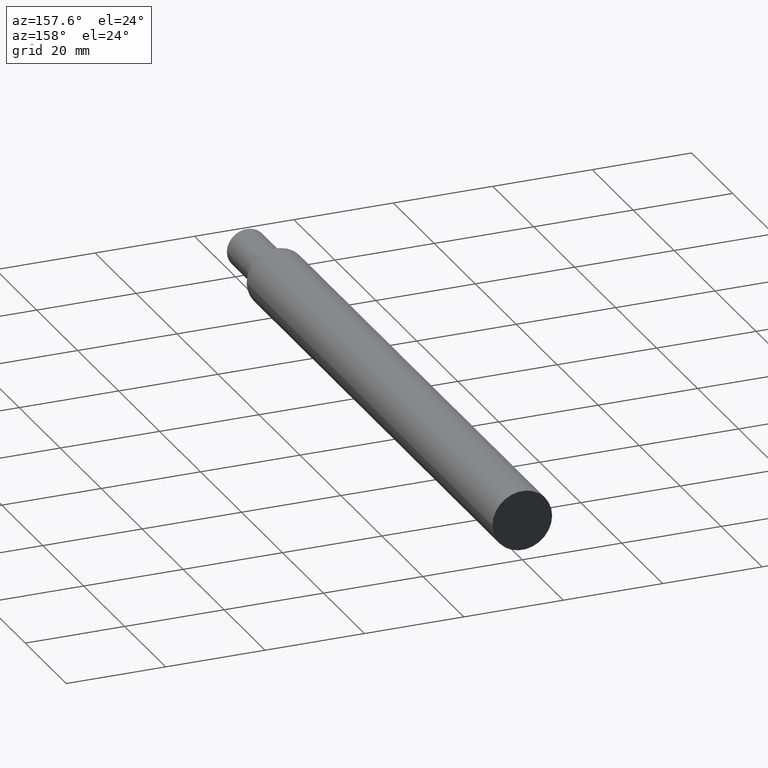
[diagram: clean part render]
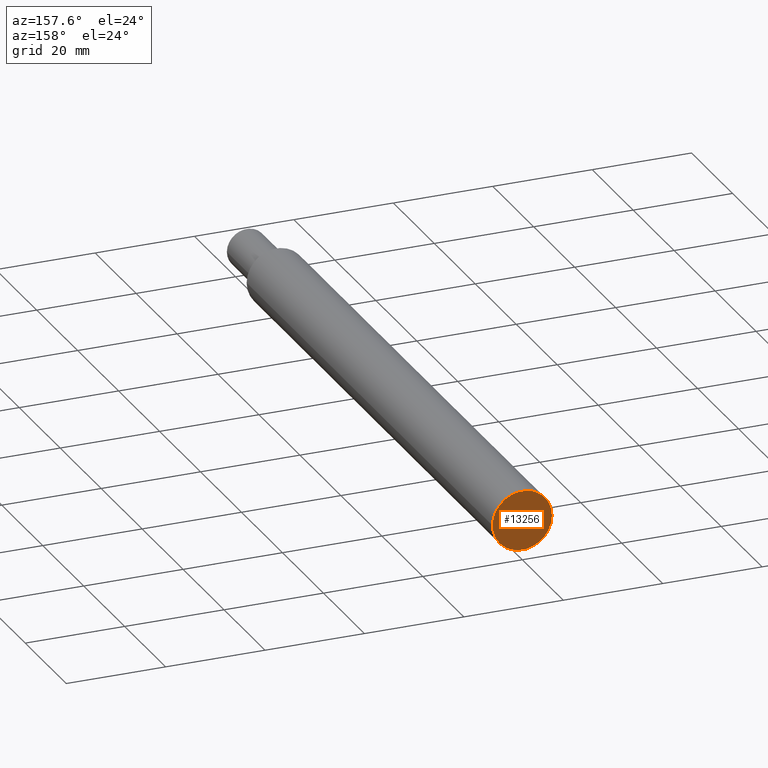
[diagram: same view with one face highlighted and labeled with its STEP entity id]
A machine part, auxiliary view. The second image highlights one B-rep face of the part: STEP entity #13256.
In plain terms, the highlighted planar face has unit normal (-0, 1, 0).
Its self-contained STEP definition (entity closure, byte-faithful):
#2923 = DIRECTION ( 'NONE',  ( -1.426614773620174541E-33, 1.000000000000000000, 0.000000000000000000 ) ) ;
#3772 = DIRECTION ( 'NONE',  ( 1.426614773620174541E-33, -1.000000000000000000, -0.000000000000000000 ) ) ;
#4794 = AXIS2_PLACEMENT_3D ( 'NONE', #13806, #3772, #13853 ) ;
#4833 = CIRCLE ( 'NONE', #4794, 5.999999999999991118 ) ;
#5236 = VERTEX_POINT ( 'NONE', #8134 ) ;
#6854 = PLANE ( 'NONE',  #11972 ) ;
#7568 = EDGE_LOOP ( 'NONE', ( #10876 ) ) ;
#8134 = CARTESIAN_POINT ( 'NONE',  ( 5.999999999999991118, 120.0000000000000142, 0.000000000000000000 ) ) ;
#8431 = CARTESIAN_POINT ( 'NONE',  ( 6.105689136934016838E-66, 120.0000000000000000, 0.000000000000000000 ) ) ;
#10876 = ORIENTED_EDGE ( 'NONE', *, *, #10921, .F. ) ;
#10921 = EDGE_CURVE ( 'NONE', #5236, #5236, #4833, .T. ) ;
#11853 = DIRECTION ( 'NONE',  ( -1.000000000000000000, -1.426614773620174541E-33, 0.000000000000000000 ) ) ;
#11972 = AXIS2_PLACEMENT_3D ( 'NONE', #8431, #2923, #11853 ) ;
#12303 = FACE_OUTER_BOUND ( 'NONE', #7568, .T. ) ;
#13256 = ADVANCED_FACE ( 'NONE', ( #12303 ), #6854, .T. ) ;
#13806 = CARTESIAN_POINT ( 'NONE',  ( 0.000000000000000000, 120.0000000000000142, 0.000000000000000000 ) ) ;
#13853 = DIRECTION ( 'NONE',  ( 1.000000000000000000, 0.000000000000000000, 0.000000000000000000 ) ) ;